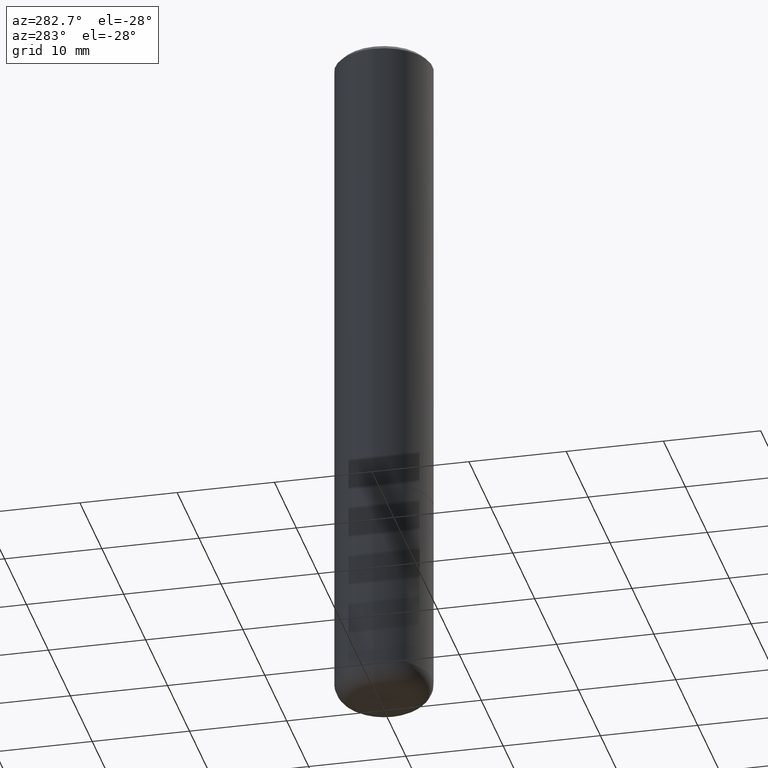
[diagram: clean part render]
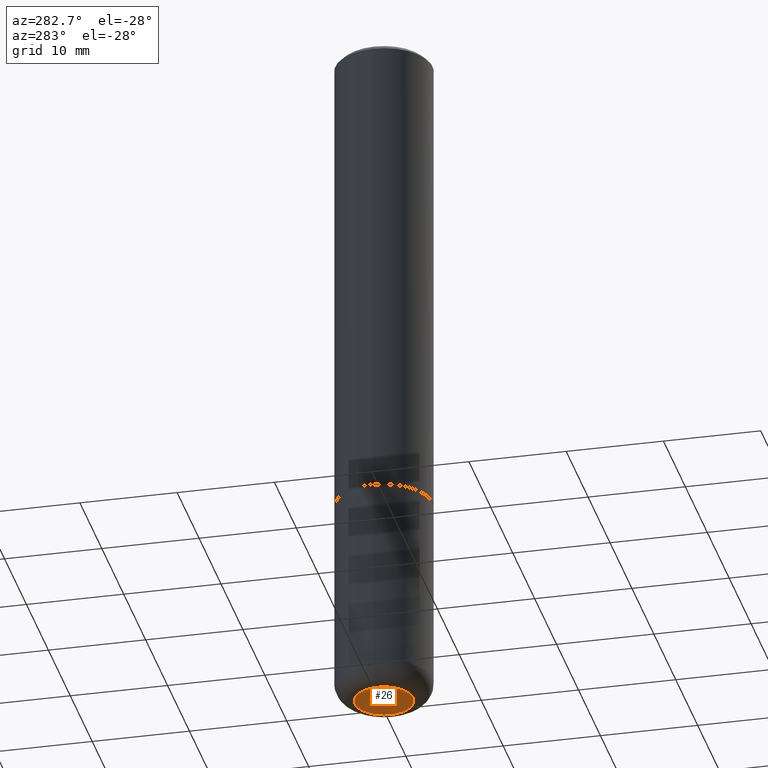
[diagram: same view with one face highlighted and labeled with its STEP entity id]
A machine part, auxiliary view. The second image highlights one B-rep face of the part: STEP entity #26.
In plain terms, the highlighted planar face has unit normal (0, -0, -1).
Its self-contained STEP definition (entity closure, byte-faithful):
#6 = PLANE ( 'NONE',  #407 ) ;
#26 = ADVANCED_FACE ( 'NONE', ( #221 ), #6, .T. ) ;
#45 = AXIS2_PLACEMENT_3D ( 'NONE', #268, #234, #396 ) ;
#70 = CARTESIAN_POINT ( 'NONE',  ( -0.1181500000000000189, -8.640458403579145034E-15, -2.834600000000000453 ) ) ;
#83 = VERTEX_POINT ( 'NONE', #70 ) ;
#118 = VERTEX_POINT ( 'NONE', #189 ) ;
#139 = CARTESIAN_POINT ( 'NONE',  ( 6.931925878012389760E-29, -9.896953003084782463E-15, -2.834600000000000453 ) ) ;
#148 = ORIENTED_EDGE ( 'NONE', *, *, #312, .F. ) ;
#189 = CARTESIAN_POINT ( 'NONE',  ( 0.1181500000000000189, -1.072199004345341424E-14, -2.834600000000000453 ) ) ;
#190 = DIRECTION ( 'NONE',  ( 2.438088387897960049E-29, -3.491481338843145188E-15, -1.000000000000000000 ) ) ;
#221 = FACE_OUTER_BOUND ( 'NONE', #344, .T. ) ;
#234 = DIRECTION ( 'NONE',  ( -2.445468806185136597E-29, 3.491481338843145583E-15, 1.000000000000000000 ) ) ;
#236 = DIRECTION ( 'NONE',  ( -2.445468806185136597E-29, 3.491481338843145583E-15, 1.000000000000000000 ) ) ;
#256 = ORIENTED_EDGE ( 'NONE', *, *, #383, .F. ) ;
#268 = CARTESIAN_POINT ( 'NONE',  ( 6.931925878012389760E-29, -9.896953003084782463E-15, -2.834600000000000453 ) ) ;
#312 = EDGE_CURVE ( 'NONE', #83, #118, #321, .T. ) ;
#321 = CIRCLE ( 'NONE', #45, 0.1181500000000000189 ) ;
#344 = EDGE_LOOP ( 'NONE', ( #256, #148 ) ) ;
#347 = DIRECTION ( 'NONE',  ( -1.000000000000000000, 6.982962677686265922E-15, -4.876176775795935793E-29 ) ) ;
#371 = DIRECTION ( 'NONE',  ( 1.000000000000000000, -6.982962677686265922E-15, 0.000000000000000000 ) ) ;
#372 = CIRCLE ( 'NONE', #400, 0.1181500000000000189 ) ;
#383 = EDGE_CURVE ( 'NONE', #118, #83, #372, .T. ) ;
#390 = CARTESIAN_POINT ( 'NONE',  ( -2.221513378819288137E-29, -2.300519900027601707E-14, -2.834600000000000453 ) ) ;
#396 = DIRECTION ( 'NONE',  ( 1.000000000000000000, -6.982962677686265922E-15, 0.000000000000000000 ) ) ;
#400 = AXIS2_PLACEMENT_3D ( 'NONE', #139, #236, #371 ) ;
#407 = AXIS2_PLACEMENT_3D ( 'NONE', #390, #190, #347 ) ;